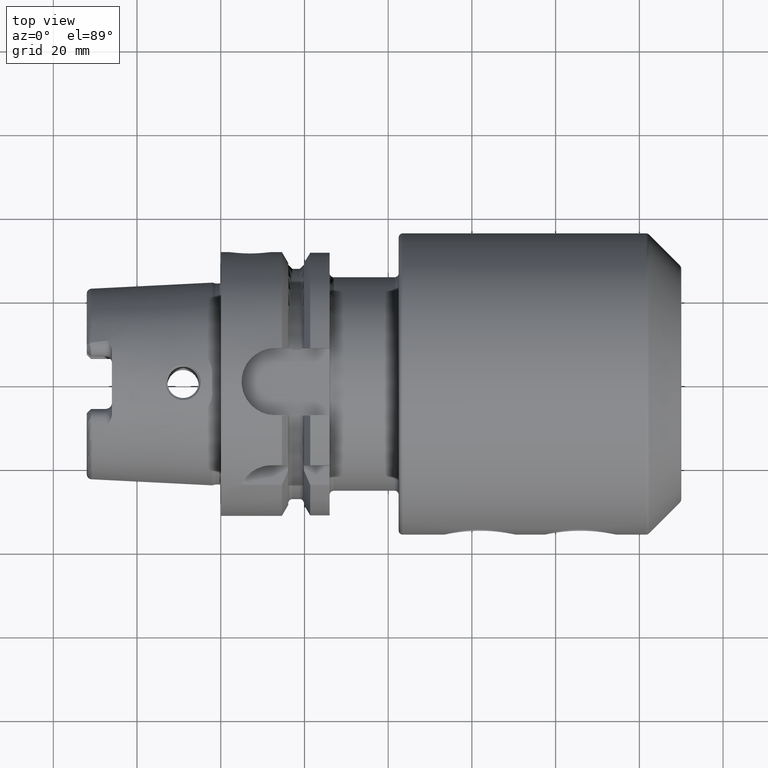
[diagram: clean part render]
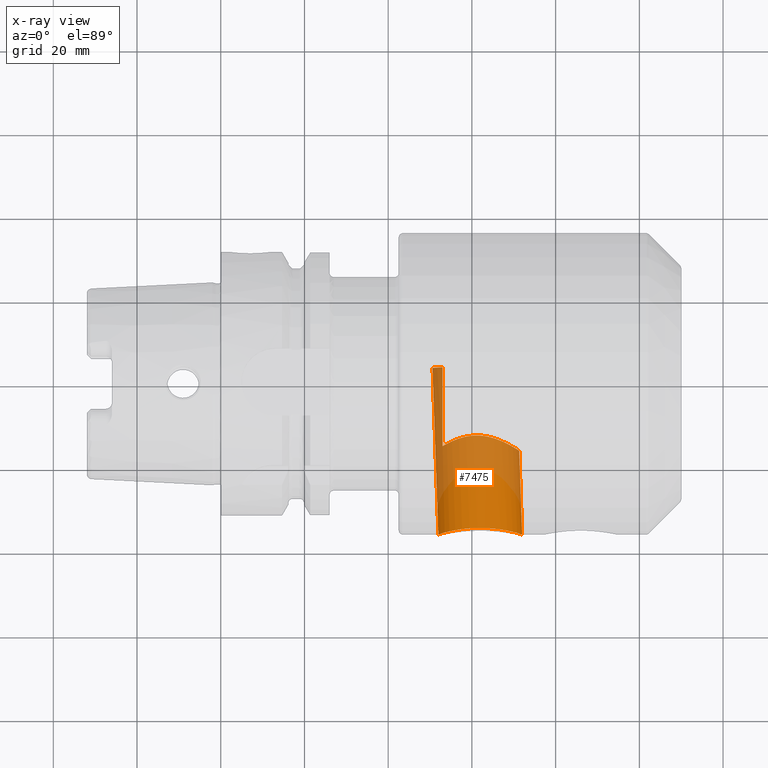
[diagram: x-ray — body ghosted, one internal face saturated and labeled with its STEP entity id]
A machine part, top view, then the same camera in x-ray: the body is ghosted and one INTERNAL B-rep face — a face not visible from any outside direction — is saturated and labeled: STEP entity #7475.
In plain terms, the highlighted cylindrical surface (partial cylindrical patch) has radius 10 mm, axis along (0.0349, -0.9994, 0).
Its self-contained STEP definition (entity closure, byte-faithful):
#7256=CARTESIAN_POINT('',(7.199146637982E1,-3.6E1,0.E0));
#7286=CARTESIAN_POINT('',(5.197927549384E1,-3.6E1,0.E0));
#7319=CARTESIAN_POINT('',(7.129305098998E1,-1.6E1,0.E0));
#7321=CARTESIAN_POINT('',(5.197927549384E1,-3.6E1,0.E0));
#7322=CARTESIAN_POINT('',(5.197927549384E1,-3.6E1,3.707871955973E-1));
#7323=CARTESIAN_POINT('',(5.202019858287E1,-3.598849527269E1,1.111423714860E0));
#7324=CARTESIAN_POINT('',(5.220252662957E1,-3.593782726345E1,2.205398132055E0));
#7325=CARTESIAN_POINT('',(5.250299172936E1,-3.585625552390E1,3.270732352794E0));
#7326=CARTESIAN_POINT('',(5.291861501271E1,-3.574739785025E1,4.296910406486E0));
#7327=CARTESIAN_POINT('',(5.344636999807E1,-3.561584781036E1,5.274513369538E0));
#7328=CARTESIAN_POINT('',(5.408733769100E1,-3.546624607501E1,6.198146794275E0));
#7329=CARTESIAN_POINT('',(5.483084818190E1,-3.530691904975E1,7.045875030710E0));
#7330=CARTESIAN_POINT('',(5.566095354144E1,-3.514721952565E1,7.800465891807E0));
#7331=CARTESIAN_POINT('',(5.657396860728E1,-3.499384179251E1,8.459436286833E0));
#7332=CARTESIAN_POINT('',(5.756944942692E1,-3.485362109555E1,9.017412159200E0));
#7333=CARTESIAN_POINT('',(5.862232389418E1,-3.473645213597E1,9.456669728629E0));
#7334=CARTESIAN_POINT('',(5.970440092736E1,-3.464947801579E1,9.769095529271E0));
#7335=CARTESIAN_POINT('',(6.080809386190E1,-3.459560069050E1,9.957372165444E0));
#7336=CARTESIAN_POINT('',(6.193517230825E1,-3.457705446933E1,1.002129509063E1));
#7337=CARTESIAN_POINT('',(6.306448809634E1,-3.459557903237E1,9.957447435094E0));
#7338=CARTESIAN_POINT('',(6.417451707157E1,-3.464960304376E1,9.768660749513E0));
#7339=CARTESIAN_POINT('',(6.526669047423E1,-3.473702879691E1,9.454582578418E0));
#7340=CARTESIAN_POINT('',(6.633215323308E1,-3.485494484704E1,9.012366313923E0));
#7341=CARTESIAN_POINT('',(6.734150675100E1,-3.499610544326E1,8.450180181745E0));
#7342=CARTESIAN_POINT('',(6.826799074172E1,-3.515036355658E1,7.786450707390E0));
#7343=CARTESIAN_POINT('',(6.911102728361E1,-3.531083355175E1,7.026432936312E0));
#7344=CARTESIAN_POINT('',(6.986506951166E1,-3.547043363749E1,6.174310456375E0));
#7345=CARTESIAN_POINT('',(7.051375575474E1,-3.561971534440E1,5.248368926068E0));
#7346=CARTESIAN_POINT('',(7.104610730798E1,-3.575033641551E1,4.272117249361E0));
#7347=CARTESIAN_POINT('',(7.146414135475E1,-3.585795315708E1,3.251293767499E0));
#7348=CARTESIAN_POINT('',(7.176608123405E1,-3.593842816404E1,2.194155026449E0));
#7349=CARTESIAN_POINT('',(7.194989635221E1,-3.598853888616E1,1.107980978869E0));
#7350=CARTESIAN_POINT('',(7.199146637982E1,-3.6E1,3.699796751199E-1));
#7351=CARTESIAN_POINT('',(7.199146637982E1,-3.6E1,0.E0));
#7353=DIRECTION('',(-3.489949670250E-2,9.993908270191E-1,0.E0));
#7354=VECTOR('',#7353,2.001219088598E1);
#7355=CARTESIAN_POINT('',(7.199146637982E1,-3.6E1,0.E0));
#7356=LINE('',#7355,#7354);
#7357=CARTESIAN_POINT('',(7.129305098998E1,-1.6E1,0.E0));
#7358=CARTESIAN_POINT('',(7.129305098998E1,-1.6E1,3.282577695070E-1));
#7359=CARTESIAN_POINT('',(7.125999558715E1,-1.597976268246E1,
9.887565613907E-1));
#7360=CARTESIAN_POINT('',(7.110792323560E1,-1.588721201657E1,1.981698265921E0));
#7361=CARTESIAN_POINT('',(7.085194119336E1,-1.573329407476E1,2.965927109670E0));
#7362=CARTESIAN_POINT('',(7.048486678576E1,-1.551684946819E1,3.944634535434E0));
#7363=CARTESIAN_POINT('',(7.000510326843E1,-1.524182302926E1,4.900627406328E0));
#7364=CARTESIAN_POINT('',(6.940200452550E1,-1.490956087927E1,5.832970710192E0));
#7365=CARTESIAN_POINT('',(6.868024288635E1,-1.453302203153E1,6.714586784926E0));
#7366=CARTESIAN_POINT('',(6.783905912413E1,-1.412585078926E1,7.530902123028E0));
#7367=CARTESIAN_POINT('',(6.690920344167E1,-1.371948062259E1,8.244356005334E0));
#7368=CARTESIAN_POINT('',(6.592703416700E1,-1.334511712516E1,8.833950344468E0));
#7369=CARTESIAN_POINT('',(6.493090484015E1,-1.302799488122E1,9.292449793094E0));
#7370=CARTESIAN_POINT('',(6.393285157751E1,-1.277863570686E1,9.630504163601E0));
#7371=CARTESIAN_POINT('',(6.295558207341E1,-1.260496978276E1,9.855457203018E0));
#7372=CARTESIAN_POINT('',(6.199005897326E1,-1.250512662979E1,9.981205530249E0));
#7373=CARTESIAN_POINT('',(6.104198773186E1,-1.247864384999E1,1.001412790782E1));
#7374=CARTESIAN_POINT('',(6.009373219720E1,-1.252387076979E1,9.957790137261E0));
#7375=CARTESIAN_POINT('',(5.914284365359E1,-1.264138835428E1,9.808934031146E0));
#7376=CARTESIAN_POINT('',(5.818544040870E1,-1.283111589741E1,9.560806287412E0));
#7377=CARTESIAN_POINT('',(5.722038136436E1,-1.309256645213E1,9.201662999935E0));
#7378=CARTESIAN_POINT('',(5.626256097696E1,-1.341827283148E1,8.722921276050E0));
#7379=CARTESIAN_POINT('',(5.532762100649E1,-1.379592533979E1,8.116146487813E0));
#7380=CARTESIAN_POINT('',(5.445087452817E1,-1.419976655796E1,7.391003752358E0));
#7381=CARTESIAN_POINT('',(5.365670483198E1,-1.460386145229E1,6.559588088459E0));
#7382=CARTESIAN_POINT('',(5.320692072119E1,-1.485025441730E1,5.964719913173E0));
#7383=CARTESIAN_POINT('',(5.3E1,-1.496642281577E1,5.657401178952E0));
#7385=CARTESIAN_POINT('',(5.3E1,-1.496642281577E1,5.657401178952E0));
#7386=CARTESIAN_POINT('',(5.3E1,-8.688312229441E0,5.976750386902E0));
#7387=CARTESIAN_POINT('',(5.3E1,-2.408430978647E0,6.257408233398E0));
#7388=CARTESIAN_POINT('',(5.3E1,3.872605923024E0,6.512813579153E0));
#7390=DIRECTION('',(-3.489949670250E-2,9.993908270191E-1,0.E0));
#7391=VECTOR('',#7390,3.981269383728E1);
#7392=CARTESIAN_POINT('',(5.197927549384E1,-3.6E1,0.E0));
#7393=LINE('',#7392,#7391);
#7417=CARTESIAN_POINT('',(6.058374078674E1,4.137435986923E0,0.E0));
#7418=DIRECTION('',(-3.489949670250E-2,9.993908270191E-1,0.E0));
#7419=DIRECTION('',(-9.993908270191E-1,-3.489949670250E-2,0.E0));
#7420=AXIS2_PLACEMENT_3D('',#7417,#7418,#7419);
#7422=VERTEX_POINT('',#7286);
#7423=VERTEX_POINT('',#7256);
#7424=VERTEX_POINT('',#7319);
#7426=VERTEX_POINT('',#7383);
#7427=CARTESIAN_POINT('',(5.058983251655E1,3.788441019898E0,0.E0));
#7428=VERTEX_POINT('',#7427);
#7430=CARTESIAN_POINT('',(5.3E1,3.872605923024E0,6.512813579153E0));
#7432=VERTEX_POINT('',#7430);
#7458=CARTESIAN_POINT('',(6.031779241996E1,1.175320077823E1,0.E0));
#7459=DIRECTION('',(3.489949670250E-2,-9.993908270191E-1,0.E0));
#7460=DIRECTION('',(-9.993908270191E-1,-3.489949670250E-2,0.E0));
#7461=AXIS2_PLACEMENT_3D('',#7458,#7459,#7460);
#7462=CYLINDRICAL_SURFACE('',#7461,1.E1);
#7464=ORIENTED_EDGE('',*,*,#7463,.T.);
#7465=ORIENTED_EDGE('',*,*,#7453,.T.);
#7467=ORIENTED_EDGE('',*,*,#7466,.T.);
#7469=ORIENTED_EDGE('',*,*,#7468,.T.);
#7471=ORIENTED_EDGE('',*,*,#7470,.F.);
#7472=ORIENTED_EDGE('',*,*,#7445,.F.);
#7473=EDGE_LOOP('',(#7464,#7465,#7467,#7469,#7471,#7472));
#7474=FACE_OUTER_BOUND('',#7473,.F.);
#7475=ADVANCED_FACE('',(#7474),#7462,.F.);
#7352=B_SPLINE_CURVE_WITH_KNOTS('',3,(#7321,#7322,#7323,#7324,#7325,#7326,#7327,
#7328,#7329,#7330,#7331,#7332,#7333,#7334,#7335,#7336,#7337,#7338,#7339,#7340,
#7341,#7342,#7343,#7344,#7345,#7346,#7347,#7348,#7349,#7350,#7351),
.UNSPECIFIED.,.F.,.F.,(4,1,1,1,1,1,1,1,1,1,1,1,1,1,1,1,1,1,1,1,1,1,1,1,1,1,1,1,
4),(0.E0,3.571428571429E-2,7.142857142857E-2,1.071428571429E-1,
1.428571428571E-1,1.785714285714E-1,2.142857142857E-1,2.5E-1,2.857142857143E-1,
3.214285714286E-1,3.571428571429E-1,3.928571428571E-1,4.285714285714E-1,
4.642857142857E-1,5.E-1,5.357142857143E-1,5.714285714286E-1,6.071428571429E-1,
6.428571428571E-1,6.785714285714E-1,7.142857142857E-1,7.5E-1,7.857142857143E-1,
8.214285714286E-1,8.571428571429E-1,8.928571428571E-1,9.285714285714E-1,
9.642857142857E-1,1.E0),.UNSPECIFIED.);
#7384=B_SPLINE_CURVE_WITH_KNOTS('',3,(#7357,#7358,#7359,#7360,#7361,#7362,#7363,
#7364,#7365,#7366,#7367,#7368,#7369,#7370,#7371,#7372,#7373,#7374,#7375,#7376,
#7377,#7378,#7379,#7380,#7381,#7382,#7383),.UNSPECIFIED.,.F.,.F.,(4,1,1,1,1,1,1,
1,1,1,1,1,1,1,1,1,1,1,1,1,1,1,1,1,4),(0.E0,4.166666666667E-2,8.333333333333E-2,
1.25E-1,1.666666666667E-1,2.083333333333E-1,2.5E-1,2.916666666667E-1,
3.333333333333E-1,3.75E-1,4.166666666667E-1,4.583333333333E-1,5.E-1,
5.416666666667E-1,5.833333333333E-1,6.25E-1,6.666666666667E-1,7.083333333333E-1,
7.5E-1,7.916666666667E-1,8.333333333333E-1,8.75E-1,9.166666666667E-1,
9.583333333333E-1,1.E0),.UNSPECIFIED.);
#7389=B_SPLINE_CURVE_WITH_KNOTS('',3,(#7385,#7386,#7387,#7388),.UNSPECIFIED.,
.F.,.F.,(4,4),(0.E0,1.E0),.UNSPECIFIED.);
#7421=CIRCLE('',#7420,1.E1);
#7445=EDGE_CURVE('',#7422,#7428,#7393,.T.);
#7453=EDGE_CURVE('',#7423,#7424,#7356,.T.);
#7463=EDGE_CURVE('',#7422,#7423,#7352,.T.);
#7466=EDGE_CURVE('',#7424,#7426,#7384,.T.);
#7468=EDGE_CURVE('',#7426,#7432,#7389,.T.);
#7470=EDGE_CURVE('',#7428,#7432,#7421,.T.);